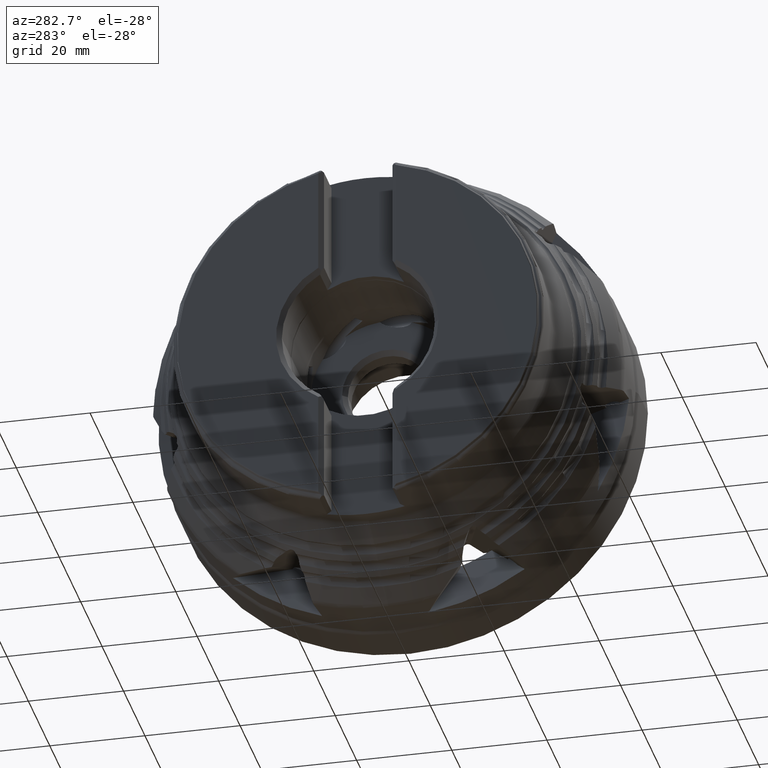
[diagram: clean part render]
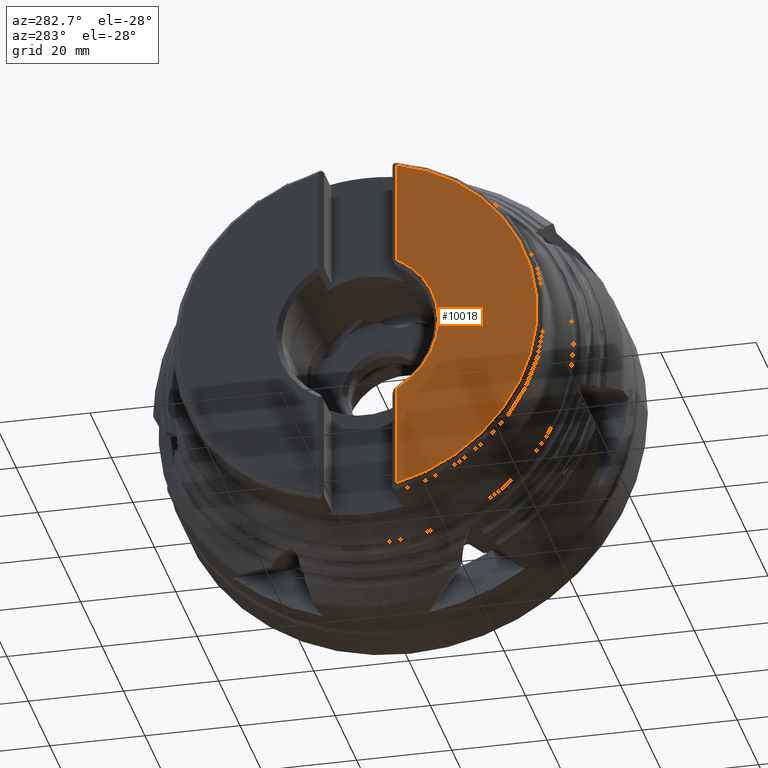
[diagram: same view with one face highlighted and labeled with its STEP entity id]
A machine part, auxiliary view. The second image highlights one B-rep face of the part: STEP entity #10018.
In plain terms, the highlighted planar face has unit normal (-1, 0, 0).
Its self-contained STEP definition (entity closure, byte-faithful):
#1840 = CIRCLE ( 'NONE', #5746, 17.07500000000002100 ) ;
#4210 = EDGE_CURVE ( 'NONE', #9715, #9701, #14251, .T. ) ;
#4214 = EDGE_CURVE ( 'NONE', #9715, #9716, #14258, .T. ) ;
#4217 = EDGE_CURVE ( 'NONE', #9703, #9717, #14260, .T. ) ;
#4218 = EDGE_CURVE ( 'NONE', #9717, #9716, #14254, .T. ) ;
#5746 = AXIS2_PLACEMENT_3D ( 'NONE', #6919, #6920, #6921 ) ;
#6919 = CARTESIAN_POINT ( 'NONE',  ( -48.25000000000002100, -5.908725657192972600E-015, 0.0000000000000000000 ) ) ;
#6920 = DIRECTION ( 'NONE',  ( 1.000000000000000000, 1.224606353822377300E-016, -0.0000000000000000000 ) ) ;
#6921 = DIRECTION ( 'NONE',  ( 0.0000000000000000000, 1.000000000000000000, 0.0000000000000000000 ) ) ;
#8948 = ORIENTED_EDGE ( 'NONE', *, *, #4210, .T. ) ;
#8949 = ORIENTED_EDGE ( 'NONE', *, *, #13450, .T. ) ;
#8962 = ORIENTED_EDGE ( 'NONE', *, *, #4218, .T. ) ;
#8963 = ORIENTED_EDGE ( 'NONE', *, *, #4214, .F. ) ;
#9045 = ORIENTED_EDGE ( 'NONE', *, *, #4217, .T. ) ;
#9701 = VERTEX_POINT ( 'NONE', #15681 ) ;
#9703 = VERTEX_POINT ( 'NONE', #15683 ) ;
#9715 = VERTEX_POINT ( 'NONE', #15695 ) ;
#9716 = VERTEX_POINT ( 'NONE', #15696 ) ;
#9717 = VERTEX_POINT ( 'NONE', #15697 ) ;
#10018 = ADVANCED_FACE ( 'NONE', ( #14528 ), #16736, .T. ) ;
#12219 = EDGE_LOOP ( 'NONE', ( #8962, #8963, #8948, #8949, #9045 ) ) ;
#13450 = EDGE_CURVE ( 'NONE', #9701, #9703, #1840, .T. ) ;
#14245 = VECTOR ( 'NONE', #15458, 1000.000000000000000 ) ;
#14251 = LINE ( 'NONE', #15444, #14245 ) ;
#14254 = LINE ( 'NONE', #15487, #14256 ) ;
#14256 = VECTOR ( 'NONE', #15488, 1000.000000000000000 ) ;
#14258 = CIRCLE ( 'NONE', #15067, 37.78759070216155200 ) ;
#14260 = CIRCLE ( 'NONE', #15069, 17.07500000000002100 ) ;
#14528 = FACE_OUTER_BOUND ( 'NONE', #12219, .T. ) ;
#15067 = AXIS2_PLACEMENT_3D ( 'NONE', #15468, #15472, #15473 ) ;
#15069 = AXIS2_PLACEMENT_3D ( 'NONE', #15483, #15485, #15486 ) ;
#15444 = CARTESIAN_POINT ( 'NONE',  ( -48.25000000000000000, -8.199999999999983300, 43.17499999999999700 ) ) ;
#15458 = DIRECTION ( 'NONE',  ( -0.0000000000000000000, -0.0000000000000000000, -1.000000000000000000 ) ) ;
#15468 = CARTESIAN_POINT ( 'NONE',  ( -48.25000000000002100, 0.0000000000000000000, 0.0000000000000000000 ) ) ;
#15472 = DIRECTION ( 'NONE',  ( 1.000000000000000000, -0.0000000000000000000, -0.0000000000000000000 ) ) ;
#15473 = DIRECTION ( 'NONE',  ( 0.0000000000000000000, 0.0000000000000000000, -1.000000000000000000 ) ) ;
#15483 = CARTESIAN_POINT ( 'NONE',  ( -48.25000000000002100, -5.908725657192972600E-015, 0.0000000000000000000 ) ) ;
#15485 = DIRECTION ( 'NONE',  ( 1.000000000000000000, 1.224606353822377300E-016, -0.0000000000000000000 ) ) ;
#15486 = DIRECTION ( 'NONE',  ( 0.0000000000000000000, 1.000000000000000000, 0.0000000000000000000 ) ) ;
#15487 = CARTESIAN_POINT ( 'NONE',  ( -48.25000000000000000, -8.199999999999983300, 43.17499999999999700 ) ) ;
#15488 = DIRECTION ( 'NONE',  ( -0.0000000000000000000, -0.0000000000000000000, -1.000000000000000000 ) ) ;
#15681 = CARTESIAN_POINT ( 'NONE',  ( -48.25000000000000000, -8.199999999999983300, 14.97717012656263700 ) ) ;
#15683 = CARTESIAN_POINT ( 'NONE',  ( -48.25000000000002100, -17.07500000000002400, 0.0000000000000000000 ) ) ;
#15695 = CARTESIAN_POINT ( 'NONE',  ( -48.25000000000000000, -8.199999999999983300, 36.88715238499830900 ) ) ;
#15696 = CARTESIAN_POINT ( 'NONE',  ( -48.25000000000000000, -8.199999999999983300, -36.88715238499830900 ) ) ;
#15697 = CARTESIAN_POINT ( 'NONE',  ( -48.25000000000000000, -8.199999999999983300, -14.97717012656263300 ) ) ;
#16305 = AXIS2_PLACEMENT_3D ( 'NONE', #16725, #16738, #16739 ) ;
#16725 = CARTESIAN_POINT ( 'NONE',  ( -48.25000000000001400, 37.78759070216155200, 0.0000000000000000000 ) ) ;
#16736 = PLANE ( 'NONE',  #16305 ) ;
#16738 = DIRECTION ( 'NONE',  ( -1.000000000000000000, 0.0000000000000000000, 0.0000000000000000000 ) ) ;
#16739 = DIRECTION ( 'NONE',  ( 0.0000000000000000000, 0.0000000000000000000, 1.000000000000000000 ) ) ;